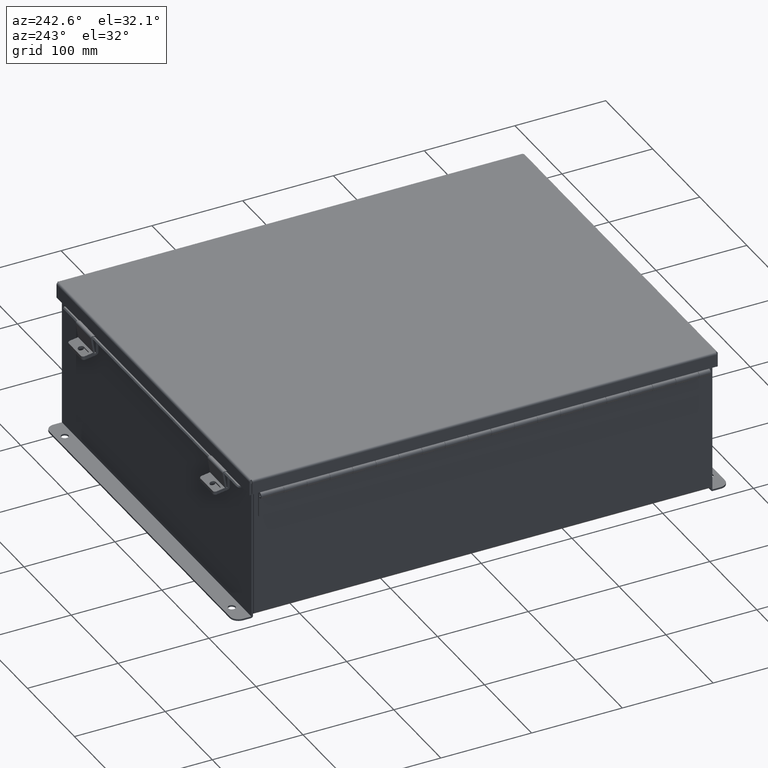
[diagram: clean part render]
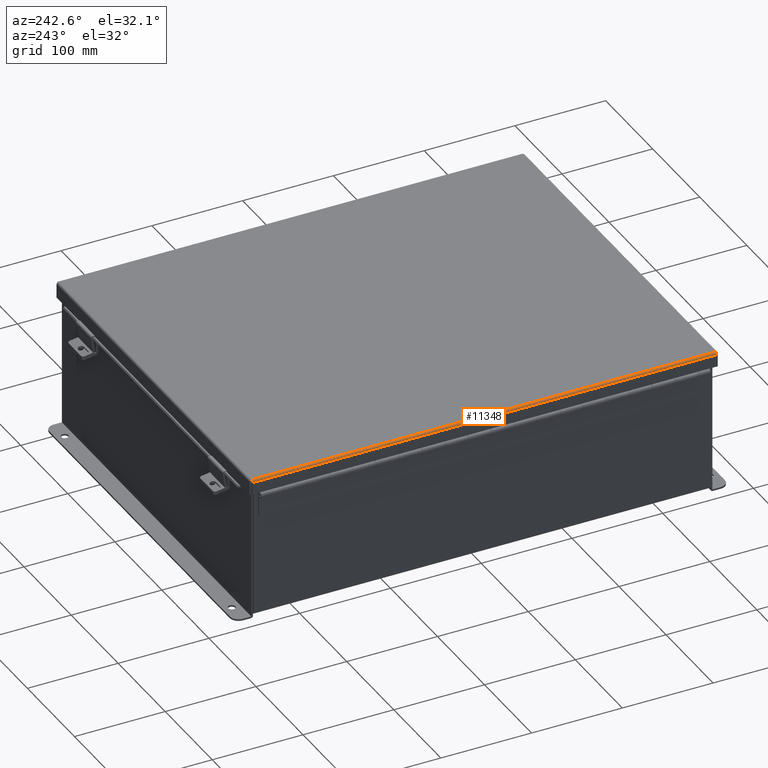
[diagram: same view with one face highlighted and labeled with its STEP entity id]
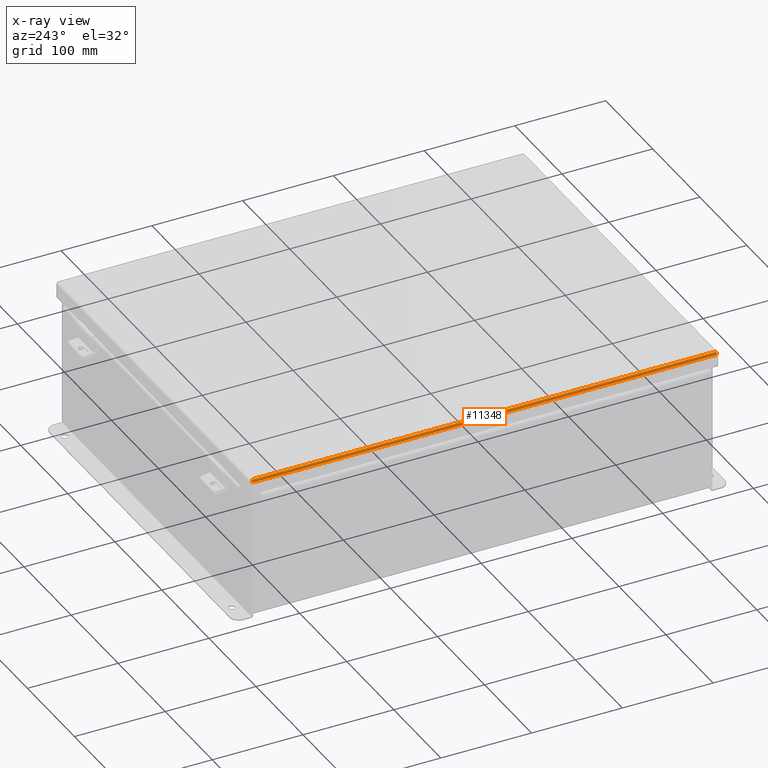
[diagram: x-ray of the same camera — body ghosted, the highlighted face saturated]
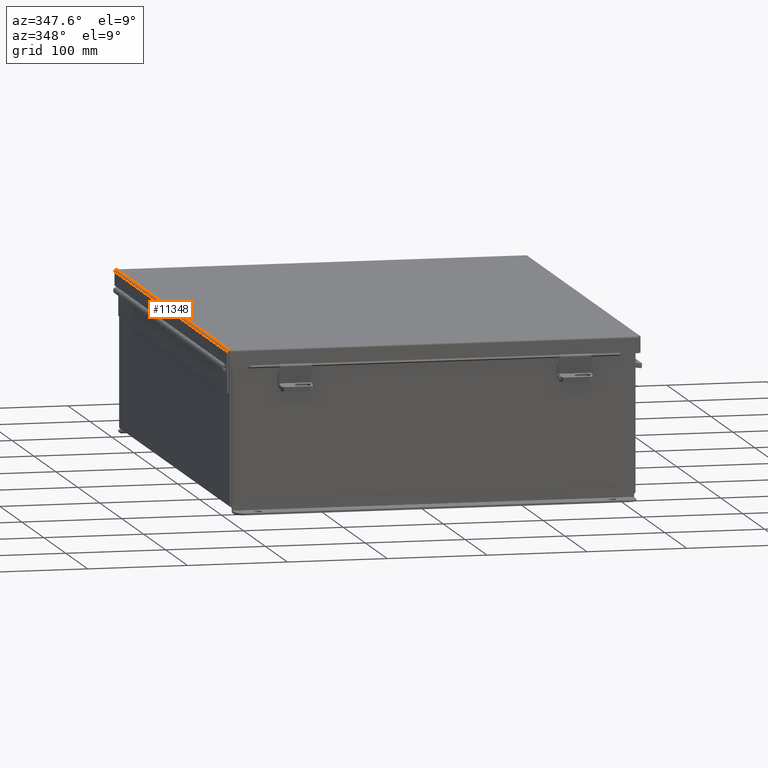
[diagram: same view with one face highlighted and labeled with its STEP entity id]
A machine part, auxiliary view. The second image highlights one B-rep face of the part: STEP entity #11348.
The next image is the same camera in x-ray: the body ghosted, the highlighted face saturated — about 0% of this face is hidden behind the body in this view.
A second angle (auxiliary view) of the same face is appended — the face is thin or edge-on in the first view.
In plain terms, the highlighted cylindrical surface (edge-blend (fillet) strip) has radius 2.2276 mm, axis along (0, 1, 0).
Its self-contained STEP definition (entity closure, byte-faithful):
#185 = DIRECTION ( 'NONE',  ( -3.166671605124525800E-030, -1.000000000000000000, -1.853823127269377700E-029 ) ) ;
#189 = CARTESIAN_POINT ( 'NONE',  ( 8.068550000000033900, 10.06854999999998100, -0.07470000000000015500 ) ) ;
#769 = CARTESIAN_POINT ( 'NONE',  ( 8.156250000000033800, -10.15625000000001600, 0.01299999999999901400 ) ) ;
#1537 = VERTEX_POINT ( 'NONE', #15625 ) ;
#1785 = ORIENTED_EDGE ( 'NONE', *, *, #15651, .T. ) ;
#1832 = CARTESIAN_POINT ( 'NONE',  ( 8.156250000000033800, 10.07398485450577200, 0.001520096845007031700 ) ) ;
#1986 = EDGE_LOOP ( 'NONE', ( #14621, #13216, #1785, #9990 ) ) ;
#2649 = CARTESIAN_POINT ( 'NONE',  ( 8.091505289458346800, -10.06953815536470700, -0.07241740374381158700 ) ) ;
#3872 = CARTESIAN_POINT ( 'NONE',  ( 8.156250000000033800, 10.07447893218811600, 0.01300000000000010700 ) ) ;
#4064 = AXIS2_PLACEMENT_3D ( 'NONE', #18902, #20673, #6759 ) ;
#4389 = CARTESIAN_POINT ( 'NONE',  ( 8.122445747341835400, -10.07102038841174100, -0.05713078207832070900 ) ) ;
#4965 = VERTEX_POINT ( 'NONE', #9433 ) ;
#5304 = CARTESIAN_POINT ( 'NONE',  ( 8.153967403743845200, 10.07349077682343000, -0.009955289458309150200 ) ) ;
#6068 = CARTESIAN_POINT ( 'NONE',  ( 8.080029903155027800, -10.06904407768236400, -0.07470000000000029400 ) ) ;
#6131 = CARTESIAN_POINT ( 'NONE',  ( 8.145181066258704300, -10.07250262145877100, -0.03116738457852817600 ) ) ;
#6561 = VERTEX_POINT ( 'NONE', #3872 ) ;
#6759 = DIRECTION ( 'NONE',  ( 1.000000000000000000, 0.0000000000000000000, -3.966747639032868000E-015 ) ) ;
#6991 = CARTESIAN_POINT ( 'NONE',  ( 8.138680782078354900, 10.07200854377639500, -0.04089574734180033400 ) ) ;
#7180 = VECTOR ( 'NONE', #19763, 39.37007874015748100 ) ;
#7316 = CYLINDRICAL_SURFACE ( 'NONE', #4064, 0.08770000000000026400 ) ;
#7821 = CARTESIAN_POINT ( 'NONE',  ( 8.156250000000035500, -10.07398485450580600, 0.001520096845007031900 ) ) ;
#8278 = B_SPLINE_CURVE_WITH_KNOTS ( 'NONE', 3,
 ( #21680, #6068, #2649, #14756, #4389, #16494, #6131, #18256, #7821, #20039 ),
 .UNSPECIFIED., .F., .F.,
 ( 4, 2, 2, 2, 4 ),
 ( 0.0000000000000000000, 0.2500000000000000000, 0.5000000000000000000, 0.7500000000000000000, 1.000000000000000000 ),
 .UNSPECIFIED. ) ;
#8697 = VERTEX_POINT ( 'NONE', #16805 ) ;
#8745 = CARTESIAN_POINT ( 'NONE',  ( 8.112717384578564500, 10.07052631072936000, -0.06363106625866869800 ) ) ;
#9433 = CARTESIAN_POINT ( 'NONE',  ( 8.068550000000033900, 10.06854999999998100, -0.07470000000000015500 ) ) ;
#9756 = EDGE_CURVE ( 'NONE', #6561, #4965, #12317, .T. ) ;
#9990 = ORIENTED_EDGE ( 'NONE', *, *, #12319, .F. ) ;
#10467 = CARTESIAN_POINT ( 'NONE',  ( 8.068550000000033900, 10.07447893218811600, -0.07470000000000015500 ) ) ;
#10473 = CARTESIAN_POINT ( 'NONE',  ( 8.080029903155029600, 10.06904407768232600, -0.07470000000000032200 ) ) ;
#11348 = ADVANCED_FACE ( 'NONE', ( #16572 ), #7316, .T. ) ;
#12317 = B_SPLINE_CURVE_WITH_KNOTS ( 'NONE', 3,
 ( #13919, #1832, #5304, #17389, #6991, #19154, #8745, #20922, #10473, #189 ),
 .UNSPECIFIED., .F., .F.,
 ( 4, 2, 2, 2, 4 ),
 ( 0.0000000000000000000, 0.2500000000000000000, 0.5000000000000000000, 0.7500000000000000000, 1.000000000000000000 ),
 .UNSPECIFIED. ) ;
#12319 = EDGE_CURVE ( 'NONE', #1537, #8697, #8278, .T. ) ;
#13216 = ORIENTED_EDGE ( 'NONE', *, *, #9756, .F. ) ;
#13500 = VECTOR ( 'NONE', #185, 39.37007874015748100 ) ;
#13919 = CARTESIAN_POINT ( 'NONE',  ( 8.156250000000033800, 10.07447893218811600, 0.01300000000000010700 ) ) ;
#14621 = ORIENTED_EDGE ( 'NONE', *, *, #18058, .F. ) ;
#14756 = CARTESIAN_POINT ( 'NONE',  ( 8.112717384578562700, -10.07052631072939500, -0.06363106625866872500 ) ) ;
#15625 = CARTESIAN_POINT ( 'NONE',  ( 8.068550000000033900, -10.06855000000001600, -0.07470000000000015500 ) ) ;
#15651 = EDGE_CURVE ( 'NONE', #6561, #8697, #21064, .T. ) ;
#16494 = CARTESIAN_POINT ( 'NONE',  ( 8.138680782078353100, -10.07200854377643000, -0.04089574734180034100 ) ) ;
#16572 = FACE_OUTER_BOUND ( 'NONE', #1986, .T. ) ;
#16805 = CARTESIAN_POINT ( 'NONE',  ( 8.156250000000033800, -10.07447893218815200, 0.01299999999999901400 ) ) ;
#17389 = CARTESIAN_POINT ( 'NONE',  ( 8.145181066258702500, 10.07250262145873700, -0.03116738457852816600 ) ) ;
#18058 = EDGE_CURVE ( 'NONE', #4965, #1537, #18111, .T. ) ;
#18111 = LINE ( 'NONE', #10467, #13500 ) ;
#18256 = CARTESIAN_POINT ( 'NONE',  ( 8.153967403743848800, -10.07349077682346200, -0.009955289458309151900 ) ) ;
#18902 = CARTESIAN_POINT ( 'NONE',  ( 8.068550000000033900, 10.07447893218811600, 0.01300000000000010700 ) ) ;
#19154 = CARTESIAN_POINT ( 'NONE',  ( 8.122445747341833700, 10.07102038841170500, -0.05713078207832070900 ) ) ;
#19763 = DIRECTION ( 'NONE',  ( -3.166671605124525800E-030, -1.000000000000000000, -1.853823127269377700E-029 ) ) ;
#20039 = CARTESIAN_POINT ( 'NONE',  ( 8.156250000000033800, -10.07447893218815200, 0.01299999999999901400 ) ) ;
#20673 = DIRECTION ( 'NONE',  ( 3.166671605124525800E-030, 1.000000000000000000, 1.853823127269377700E-029 ) ) ;
#20922 = CARTESIAN_POINT ( 'NONE',  ( 8.091505289458345000, 10.06953815536467000, -0.07241740374381157300 ) ) ;
#21064 = LINE ( 'NONE', #769, #7180 ) ;
#21680 = CARTESIAN_POINT ( 'NONE',  ( 8.068550000000033900, -10.06855000000001600, -0.07470000000000015500 ) ) ;